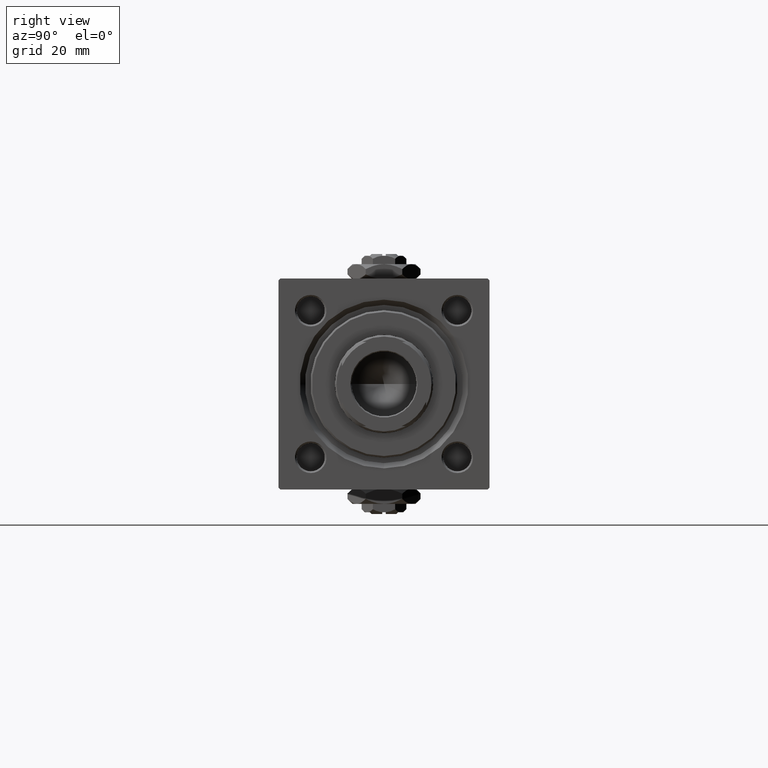
[diagram: clean part render]
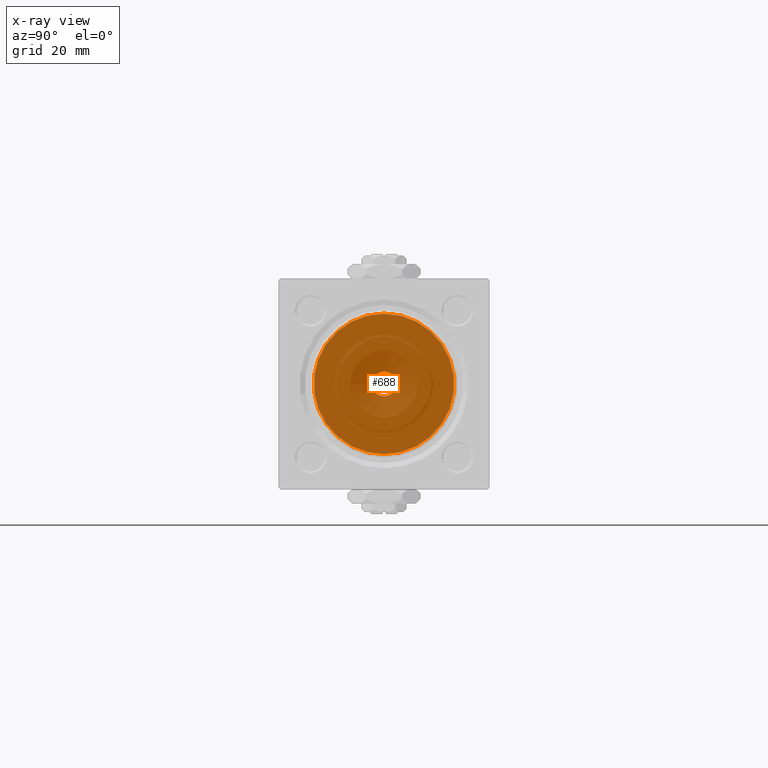
[diagram: x-ray — body ghosted, one internal face saturated and labeled with its STEP entity id]
A machine part, right view, then the same camera in x-ray: the body is ghosted and one INTERNAL B-rep face — a face not visible from any outside direction — is saturated and labeled: STEP entity #688.
In plain terms, the highlighted planar face has unit normal (-1, 0, 0).
Its self-contained STEP definition (entity closure, byte-faithful):
#688 = ADVANCED_FACE ( 'NONE', ( #36345, #16002 ), #32112, .F. ) ;
#877 = CARTESIAN_POINT ( 'NONE',  ( 37.00000000000000711, 4.286263797015736595E-16, -3.500000000000000000 ) ) ;
#886 = ORIENTED_EDGE ( 'NONE', *, *, #2733, .T. ) ;
#2467 = EDGE_CURVE ( 'NONE', #8819, #14767, #29417, .T. ) ;
#2733 = EDGE_CURVE ( 'NONE', #14767, #8819, #51371, .T. ) ;
#3577 = DIRECTION ( 'NONE',  ( -1.000000000000000000, 0.000000000000000000, -0.000000000000000000 ) ) ;
#3862 = DIRECTION ( 'NONE',  ( -1.000000000000000000, 0.000000000000000000, -0.000000000000000000 ) ) ;
#3866 = CARTESIAN_POINT ( 'NONE',  ( 37.00000000000000000, -1.527916156705046464E-16, -20.00000000000000000 ) ) ;
#4483 = DIRECTION ( 'NONE',  ( 0.000000000000000000, 0.000000000000000000, 1.000000000000000000 ) ) ;
#5061 = CIRCLE ( 'NONE', #25288, 3.500000000000000000 ) ;
#8819 = VERTEX_POINT ( 'NONE', #3866 ) ;
#10269 = DIRECTION ( 'NONE',  ( 0.000000000000000000, 0.000000000000000000, -1.000000000000000000 ) ) ;
#12276 = ORIENTED_EDGE ( 'NONE', *, *, #2467, .T. ) ;
#12881 = ORIENTED_EDGE ( 'NONE', *, *, #45777, .T. ) ;
#13919 = ORIENTED_EDGE ( 'NONE', *, *, #37021, .T. ) ;
#14767 = VERTEX_POINT ( 'NONE', #51607 ) ;
#15719 = CARTESIAN_POINT ( 'NONE',  ( 37.00000000000000711, 0.000000000000000000, 0.000000000000000000 ) ) ;
#16002 = FACE_OUTER_BOUND ( 'NONE', #48103, .T. ) ;
#24025 = DIRECTION ( 'NONE',  ( -1.000000000000000000, 0.000000000000000000, -0.000000000000000000 ) ) ;
#24769 = CARTESIAN_POINT ( 'NONE',  ( 37.00000000000000000, -2.602085213965210642E-15, 0.000000000000000000 ) ) ;
#25288 = AXIS2_PLACEMENT_3D ( 'NONE', #15719, #3577, #51154 ) ;
#27270 = AXIS2_PLACEMENT_3D ( 'NONE', #44128, #24025, #4483 ) ;
#27758 = AXIS2_PLACEMENT_3D ( 'NONE', #48254, #3862, #44564 ) ;
#28162 = CARTESIAN_POINT ( 'NONE',  ( 37.00000000000000711, 0.000000000000000000, 3.500000000000000000 ) ) ;
#28449 = DIRECTION ( 'NONE',  ( 0.000000000000000000, 0.000000000000000000, -1.000000000000000000 ) ) ;
#28557 = AXIS2_PLACEMENT_3D ( 'NONE', #46763, #38019, #10269 ) ;
#29417 = CIRCLE ( 'NONE', #28557, 20.00000000000000000 ) ;
#31962 = AXIS2_PLACEMENT_3D ( 'NONE', #24769, #32440, #28449 ) ;
#32112 = PLANE ( 'NONE',  #27758 ) ;
#32440 = DIRECTION ( 'NONE',  ( 1.000000000000000000, 0.000000000000000000, 0.000000000000000000 ) ) ;
#36345 = FACE_BOUND ( 'NONE', #44351, .T. ) ;
#37021 = EDGE_CURVE ( 'NONE', #37775, #51012, #5061, .T. ) ;
#37775 = VERTEX_POINT ( 'NONE', #28162 ) ;
#38019 = DIRECTION ( 'NONE',  ( 1.000000000000000000, 0.000000000000000000, 0.000000000000000000 ) ) ;
#41648 = CIRCLE ( 'NONE', #27270, 3.500000000000000000 ) ;
#44128 = CARTESIAN_POINT ( 'NONE',  ( 37.00000000000000711, 0.000000000000000000, 0.000000000000000000 ) ) ;
#44351 = EDGE_LOOP ( 'NONE', ( #13919, #12881 ) ) ;
#44564 = DIRECTION ( 'NONE',  ( -0.000000000000000000, 0.000000000000000000, 1.000000000000000000 ) ) ;
#45777 = EDGE_CURVE ( 'NONE', #51012, #37775, #41648, .T. ) ;
#46763 = CARTESIAN_POINT ( 'NONE',  ( 37.00000000000000000, -2.602085213965210642E-15, 0.000000000000000000 ) ) ;
#48103 = EDGE_LOOP ( 'NONE', ( #886, #12276 ) ) ;
#48254 = CARTESIAN_POINT ( 'NONE',  ( 37.00000000000000000, 0.000000000000000000, 0.000000000000000000 ) ) ;
#51012 = VERTEX_POINT ( 'NONE', #877 ) ;
#51154 = DIRECTION ( 'NONE',  ( 0.000000000000000000, 0.000000000000000000, 1.000000000000000000 ) ) ;
#51371 = CIRCLE ( 'NONE', #31962, 20.00000000000000000 ) ;
#51607 = CARTESIAN_POINT ( 'NONE',  ( 37.00000000000000000, -2.602085213965210642E-15, 20.00000000000000000 ) ) ;